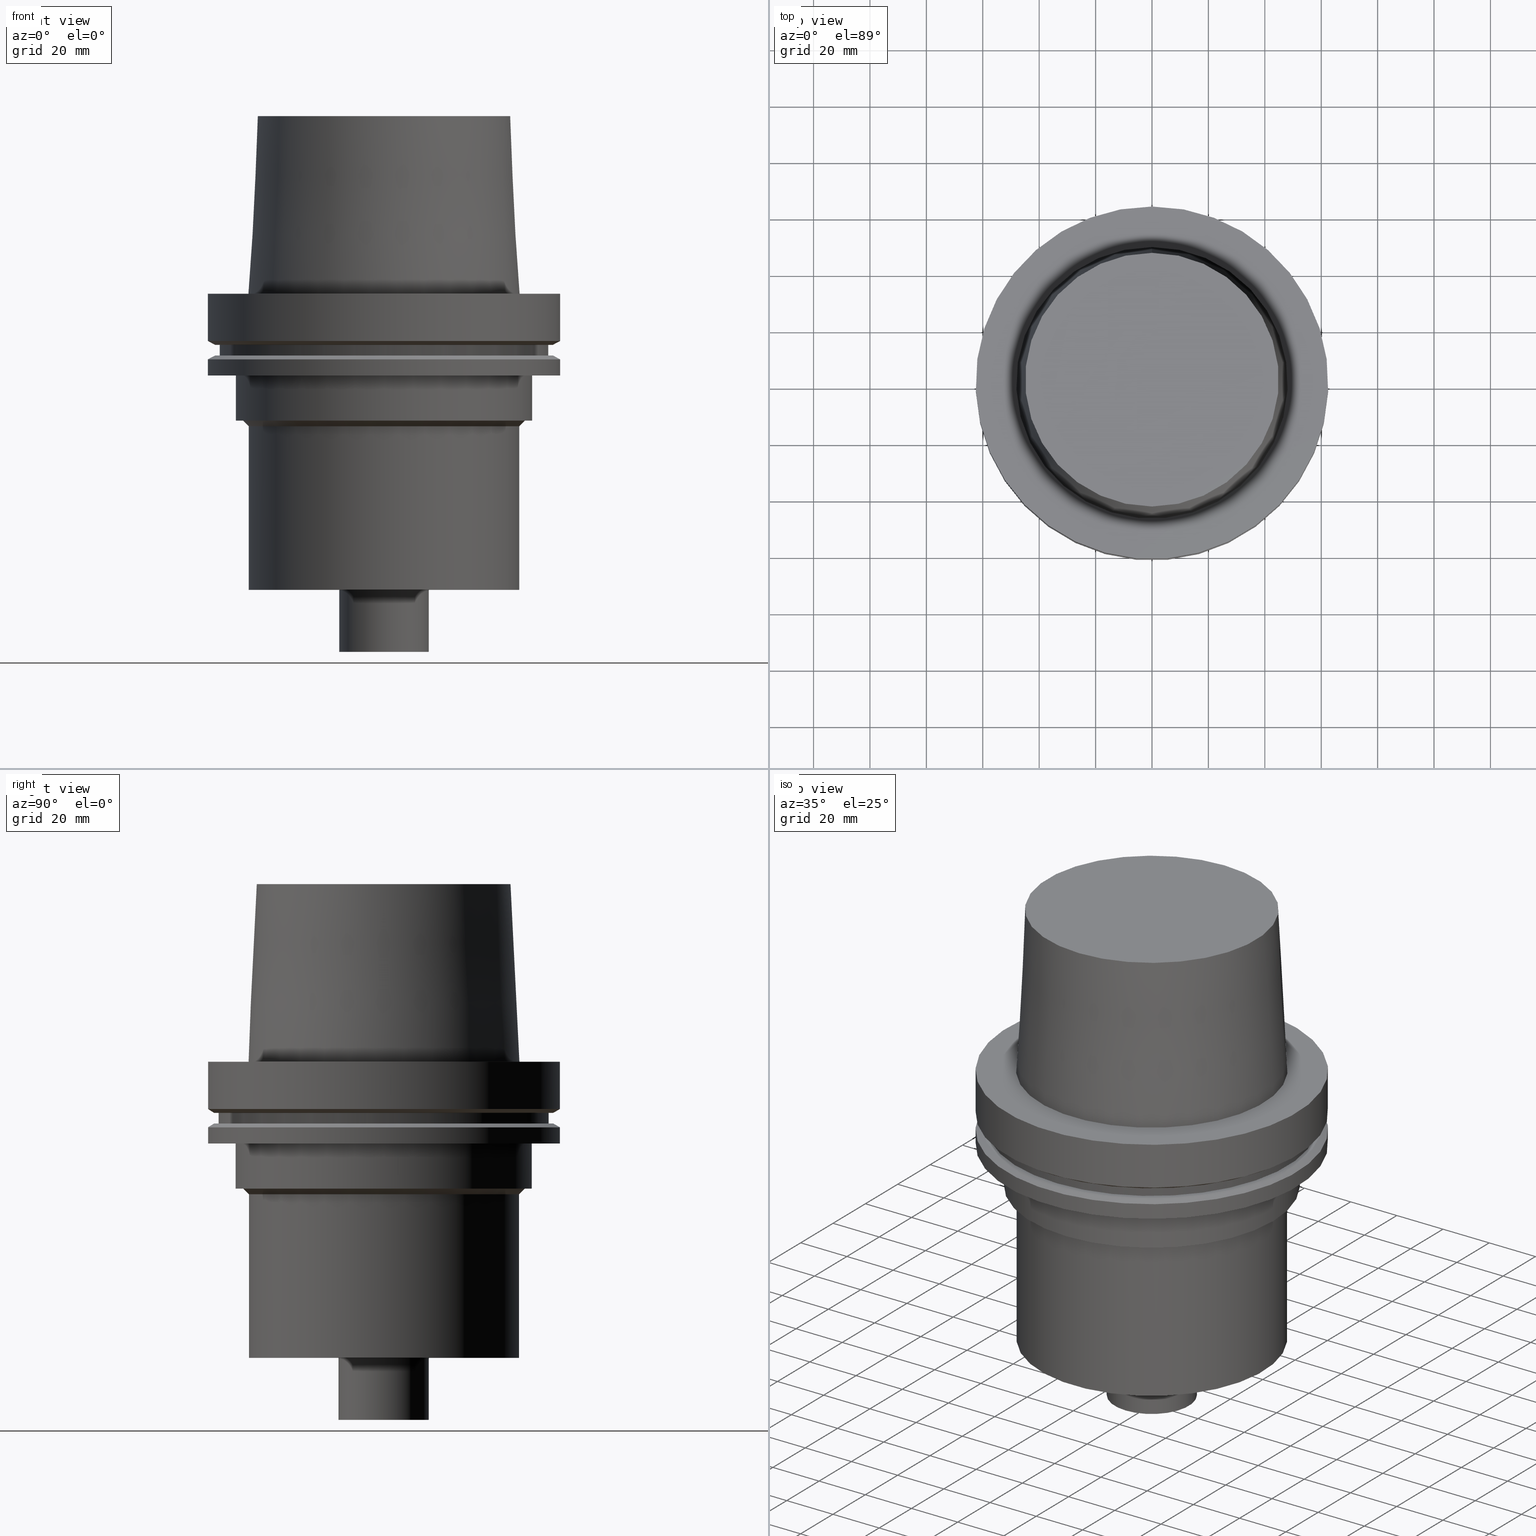
[diagram: canonical four-view strip — front | top / right | iso, engineering-drawing reading convention]
A machine part, canonical four-view strip (front | top / right | iso — engineering-drawing reading convention). The complete STEP part file that produces these views, byte-faithful:
ISO-10303-21;
HEADER;
FILE_DESCRIPTION((''),'1');
FILE_NAME('V:/02_3D_Field-HP\X2\FF71FF6FFF8CFF9F5916\X0\2013/02_Step_Field-HP\X2\FF71FF6FFF8CFF9F5916\X0\2013/BIGKAISER_BKUS\X2\5411\X0\_201802/HSK/HSK-A125-FMH32-96-105.stp','2018-02-05T01:11:56',(''),(''),'Spatial Interop R21 SP3','Kubotek KeyCreator 2011 V10.0.2 (22737)',' ');
FILE_SCHEMA(('automotive_design'));
ENDSEC;
DATA;
#1=MECHANICAL_DESIGN_GEOMETRIC_PRESENTATION_REPRESENTATION(' ',(#10,#11,#12,#13,#14,#15,#16,#17,#18,#19,#20,#21,#22,#23,#24,#25,#26,#27,#28,#29,#30,#31,#32,#33,#34,#35,#36,#37,#38,#39,#40,#41,#42,#43,#44,#45),#6);
#2=PRODUCT_DEFINITION_CONTEXT('',#46,'design');
#3=APPLICATION_PROTOCOL_DEFINITION('INTERNATIONAL STANDARD','automotive_design',1994,#46);
#4=PRODUCT_CATEGORY_RELATIONSHIP('NONE','NONE',#47,#48);
#5=SHAPE_DEFINITION_REPRESENTATION(#49,#50);
#6= (GEOMETRIC_REPRESENTATION_CONTEXT(3)GLOBAL_UNCERTAINTY_ASSIGNED_CONTEXT((#53))GLOBAL_UNIT_ASSIGNED_CONTEXT((#55,#56,#57))REPRESENTATION_CONTEXT('NONE','WORKSPACE'));
#10=STYLED_ITEM('',(#59,#60),#61);
#11=STYLED_ITEM('',(#62,#63),#64);
#12=STYLED_ITEM('',(#65,#66),#67);
#13=STYLED_ITEM('',(#68,#69),#70);
#14=STYLED_ITEM('',(#71,#72),#73);
#15=STYLED_ITEM('',(#74,#75),#76);
#16=STYLED_ITEM('',(#77,#78),#79);
#17=STYLED_ITEM('',(#80),#81);
#18=STYLED_ITEM('',(#82),#83);
#19=STYLED_ITEM('',(#84,#85),#86);
#20=STYLED_ITEM('',(#87,#88),#89);
#21=STYLED_ITEM('',(#90,#91),#92);
#22=STYLED_ITEM('',(#93,#94),#95);
#23=STYLED_ITEM('',(#96),#97);
#24=STYLED_ITEM('',(#98),#99);
#25=STYLED_ITEM('',(#100,#101),#102);
#26=STYLED_ITEM('',(#103),#104);
#27=STYLED_ITEM('',(#105),#106);
#28=STYLED_ITEM('',(#107),#108);
#29=STYLED_ITEM('',(#109),#110);
#30=STYLED_ITEM('',(#111,#112),#113);
#31=STYLED_ITEM('',(#114,#115),#116);
#32=STYLED_ITEM('',(#117),#118);
#33=STYLED_ITEM('',(#119),#120);
#34=STYLED_ITEM('',(#121),#122);
#35=STYLED_ITEM('',(#123),#124);
#36=STYLED_ITEM('',(#125,#126),#127);
#37=STYLED_ITEM('',(#128),#129);
#38=STYLED_ITEM('',(#130),#131);
#39=STYLED_ITEM('',(#132),#133);
#40=STYLED_ITEM('',(#134,#135),#136);
#41=STYLED_ITEM('',(#137),#138);
#42=STYLED_ITEM('',(#139,#140),#141);
#43=STYLED_ITEM('',(#142,#143),#144);
#44=STYLED_ITEM('',(#145,#146),#147);
#45=STYLED_ITEM('',(#148),#149);
#46=APPLICATION_CONTEXT(' ');
#47=PRODUCT_CATEGORY('part','NONE');
#48=PRODUCT_RELATED_PRODUCT_CATEGORY('detail',' ',(#150));
#49=PRODUCT_DEFINITION_SHAPE('NONE','NONE',#151);
#50=ADVANCED_BREP_SHAPE_REPRESENTATION('Unnamed[1]',(#141,#152),#6);
#53=UNCERTAINTY_MEASURE_WITH_UNIT(LENGTH_MEASURE(1.0E-006),#55,'','');
#55= (CONVERSION_BASED_UNIT('MILLIMETRE',#155)LENGTH_UNIT()NAMED_UNIT(#158));
#56= (NAMED_UNIT(#160)PLANE_ANGLE_UNIT()SI_UNIT($,.RADIAN.));
#57= (NAMED_UNIT(#160)SOLID_ANGLE_UNIT()SI_UNIT($,.STERADIAN.));
#59=PRESENTATION_STYLE_ASSIGNMENT((#166));
#60=PRESENTATION_STYLE_ASSIGNMENT((#167));
#61=ADVANCED_FACE('Unnamed[1]',(#168,#169),#170,.T.);
#62=PRESENTATION_STYLE_ASSIGNMENT((#171));
#63=PRESENTATION_STYLE_ASSIGNMENT((#172));
#64=ADVANCED_FACE('Unnamed[1]',(#173,#174),#175,.T.);
#65=PRESENTATION_STYLE_ASSIGNMENT((#176));
#66=PRESENTATION_STYLE_ASSIGNMENT((#177));
#67=ADVANCED_FACE('Unnamed[1]',(#178,#179),#180,.T.);
#68=PRESENTATION_STYLE_ASSIGNMENT((#181));
#69=PRESENTATION_STYLE_ASSIGNMENT((#182));
#70=ADVANCED_FACE('Unnamed[1]',(#183,#184),#185,.T.);
#71=PRESENTATION_STYLE_ASSIGNMENT((#186));
#72=PRESENTATION_STYLE_ASSIGNMENT((#187));
#73=ADVANCED_FACE('Unnamed[1]',(#188,#189),#190,.T.);
#74=PRESENTATION_STYLE_ASSIGNMENT((#191));
#75=PRESENTATION_STYLE_ASSIGNMENT((#192));
#76=ADVANCED_FACE('Unnamed[1]',(#193),#194,.T.);
#77=PRESENTATION_STYLE_ASSIGNMENT((#195));
#78=PRESENTATION_STYLE_ASSIGNMENT((#196));
#79=ADVANCED_FACE('Unnamed[1]',(#197,#198),#199,.T.);
#80=PRESENTATION_STYLE_ASSIGNMENT((#200));
#81=EDGE_CURVE('Unnamed[1]',#201,#201,#202,.T.);
#82=PRESENTATION_STYLE_ASSIGNMENT((#203));
#83=EDGE_CURVE('Unnamed[1]',#204,#204,#205,.T.);
#84=PRESENTATION_STYLE_ASSIGNMENT((#206));
#85=PRESENTATION_STYLE_ASSIGNMENT((#207));
#86=ADVANCED_FACE('Unnamed[1]',(#208,#209),#210,.T.);
#87=PRESENTATION_STYLE_ASSIGNMENT((#211));
#88=PRESENTATION_STYLE_ASSIGNMENT((#212));
#89=ADVANCED_FACE('Unnamed[1]',(#213,#214),#215,.T.);
#90=PRESENTATION_STYLE_ASSIGNMENT((#216));
#91=PRESENTATION_STYLE_ASSIGNMENT((#217));
#92=ADVANCED_FACE('Unnamed[1]',(#218,#219),#220,.T.);
#93=PRESENTATION_STYLE_ASSIGNMENT((#221));
#94=PRESENTATION_STYLE_ASSIGNMENT((#222));
#95=ADVANCED_FACE('Unnamed[1]',(#223,#224),#225,.T.);
#96=PRESENTATION_STYLE_ASSIGNMENT((#226));
#97=EDGE_CURVE('Unnamed[1]',#227,#227,#228,.T.);
#98=PRESENTATION_STYLE_ASSIGNMENT((#229));
#99=EDGE_CURVE('Unnamed[1]',#230,#230,#231,.T.);
#100=PRESENTATION_STYLE_ASSIGNMENT((#232));
#101=PRESENTATION_STYLE_ASSIGNMENT((#233));
#102=ADVANCED_FACE('Unnamed[1]',(#234),#235,.T.);
#103=PRESENTATION_STYLE_ASSIGNMENT((#236));
#104=EDGE_CURVE('Unnamed[1]',#237,#237,#238,.T.);
#105=PRESENTATION_STYLE_ASSIGNMENT((#239));
#106=EDGE_CURVE('Unnamed[1]',#240,#240,#241,.T.);
#107=PRESENTATION_STYLE_ASSIGNMENT((#242));
#108=EDGE_CURVE('Unnamed[1]',#243,#243,#244,.T.);
#109=PRESENTATION_STYLE_ASSIGNMENT((#245));
#110=EDGE_CURVE('Unnamed[1]',#246,#246,#247,.T.);
#111=PRESENTATION_STYLE_ASSIGNMENT((#248));
#112=PRESENTATION_STYLE_ASSIGNMENT((#249));
#113=ADVANCED_FACE('Unnamed[1]',(#250,#251),#252,.T.);
#114=PRESENTATION_STYLE_ASSIGNMENT((#253));
#115=PRESENTATION_STYLE_ASSIGNMENT((#254));
#116=ADVANCED_FACE('Unnamed[1]',(#255,#256),#257,.T.);
#117=PRESENTATION_STYLE_ASSIGNMENT((#258));
#118=EDGE_CURVE('Unnamed[1]',#259,#259,#260,.T.);
#119=PRESENTATION_STYLE_ASSIGNMENT((#261));
#120=EDGE_CURVE('Unnamed[1]',#262,#262,#263,.T.);
#121=PRESENTATION_STYLE_ASSIGNMENT((#264));
#122=EDGE_CURVE('Unnamed[1]',#265,#265,#266,.T.);
#123=PRESENTATION_STYLE_ASSIGNMENT((#267));
#124=EDGE_CURVE('Unnamed[1]',#268,#268,#269,.T.);
#125=PRESENTATION_STYLE_ASSIGNMENT((#270));
#126=PRESENTATION_STYLE_ASSIGNMENT((#271));
#127=ADVANCED_FACE('Unnamed[1]',(#272,#273),#274,.T.);
#128=PRESENTATION_STYLE_ASSIGNMENT((#275));
#129=EDGE_CURVE('Unnamed[1]',#276,#276,#277,.T.);
#130=PRESENTATION_STYLE_ASSIGNMENT((#278));
#131=EDGE_CURVE('Unnamed[1]',#279,#279,#280,.T.);
#132=PRESENTATION_STYLE_ASSIGNMENT((#281));
#133=EDGE_CURVE('Unnamed[1]',#282,#282,#283,.T.);
#134=PRESENTATION_STYLE_ASSIGNMENT((#284));
#135=PRESENTATION_STYLE_ASSIGNMENT((#285));
#136=ADVANCED_FACE('Unnamed[1]',(#286,#287),#288,.T.);
#137=PRESENTATION_STYLE_ASSIGNMENT((#289));
#138=EDGE_CURVE('Unnamed[1]',#290,#290,#291,.T.);
#139=PRESENTATION_STYLE_ASSIGNMENT((#292));
#140=PRESENTATION_STYLE_ASSIGNMENT((#293));
#141=MANIFOLD_SOLID_BREP('Unnamed[1]',#294);
#142=PRESENTATION_STYLE_ASSIGNMENT((#295));
#143=PRESENTATION_STYLE_ASSIGNMENT((#296));
#144=ADVANCED_FACE('Unnamed[1]',(#297,#298),#299,.T.);
#145=PRESENTATION_STYLE_ASSIGNMENT((#300));
#146=PRESENTATION_STYLE_ASSIGNMENT((#301));
#147=ADVANCED_FACE('Unnamed[1]',(#302,#303),#304,.T.);
#148=PRESENTATION_STYLE_ASSIGNMENT((#305));
#149=EDGE_CURVE('Unnamed[1]',#306,#306,#307,.T.);
#150=PRODUCT('Unnamed[1]','Unnamed[1]','PART-Unnamed[1]-DESC',(#308));
#151=PRODUCT_DEFINITION('NONE','NONE',#309,#2);
#152=AXIS2_PLACEMENT_3D('',#310,#311,#312);
#155=LENGTH_MEASURE_WITH_UNIT(LENGTH_MEASURE(1.0),#313);
#158=DIMENSIONAL_EXPONENTS(1.0,0.0,0.0,0.0,0.0,0.0,0.0);
#160=DIMENSIONAL_EXPONENTS(0.0,0.0,0.0,0.0,0.0,0.0,0.0);
#166=SURFACE_STYLE_USAGE(.BOTH.,#314);
#167=CURVE_STYLE('',#315,POSITIVE_LENGTH_MEASURE(1000.0),#316);
#168=FACE_OUTER_BOUND('',#317,.T.);
#169=FACE_BOUND('',#318,.T.);
#170=PLANE('',#319);
#171=SURFACE_STYLE_USAGE(.BOTH.,#320);
#172=CURVE_STYLE('',#321,POSITIVE_LENGTH_MEASURE(1000.0),#322);
#173=FACE_BOUND('',#323,.T.);
#174=FACE_BOUND('',#324,.T.);
#175=CONICAL_SURFACE('',#325,48.9999999999999,0.785398163397411);
#176=SURFACE_STYLE_USAGE(.BOTH.,#326);
#177=CURVE_STYLE('',#327,POSITIVE_LENGTH_MEASURE(1000.0),#328);
#178=FACE_BOUND('',#329,.T.);
#179=FACE_OUTER_BOUND('',#330,.T.);
#180=PLANE('',#331);
#181=SURFACE_STYLE_USAGE(.BOTH.,#332);
#182=CURVE_STYLE('',#333,POSITIVE_LENGTH_MEASURE(1000.0),#334);
#183=FACE_BOUND('',#335,.T.);
#184=FACE_BOUND('',#336,.T.);
#185=CYLINDRICAL_SURFACE('',#337,15.9999999999998);
#186=SURFACE_STYLE_USAGE(.BOTH.,#338);
#187=CURVE_STYLE('',#339,POSITIVE_LENGTH_MEASURE(1000.0),#340);
#188=FACE_BOUND('',#341,.T.);
#189=FACE_OUTER_BOUND('',#342,.T.);
#190=PLANE('',#343);
#191=SURFACE_STYLE_USAGE(.BOTH.,#344);
#192=CURVE_STYLE('',#345,POSITIVE_LENGTH_MEASURE(1000.0),#346);
#193=FACE_OUTER_BOUND('',#347,.T.);
#194=PLANE('',#348);
#195=SURFACE_STYLE_USAGE(.BOTH.,#349);
#196=CURVE_STYLE('',#350,POSITIVE_LENGTH_MEASURE(1000.0),#351);
#197=FACE_BOUND('',#352,.T.);
#198=FACE_BOUND('',#353,.T.);
#199=CYLINDRICAL_SURFACE('',#354,62.5);
#200=CURVE_STYLE('',#355,POSITIVE_LENGTH_MEASURE(1000.0),#356);
#201=VERTEX_POINT('',#357);
#202=CIRCLE('',#358,58.4999999999998);
#203=CURVE_STYLE('',#359,POSITIVE_LENGTH_MEASURE(1000.0),#360);
#204=VERTEX_POINT('',#361);
#205=CIRCLE('',#362,60.122595264194);
#206=SURFACE_STYLE_USAGE(.BOTH.,#363);
#207=CURVE_STYLE('',#364,POSITIVE_LENGTH_MEASURE(1000.0),#365);
#208=FACE_BOUND('',#366,.T.);
#209=FACE_BOUND('',#367,.T.);
#210=CYLINDRICAL_SURFACE('',#368,52.4999999999999);
#211=SURFACE_STYLE_USAGE(.BOTH.,#369);
#212=CURVE_STYLE('',#370,POSITIVE_LENGTH_MEASURE(1000.0),#371);
#213=FACE_BOUND('',#372,.T.);
#214=FACE_BOUND('',#373,.T.);
#215=CONICAL_SURFACE('',#374,61.311297632097,1.04719755119646);
#216=SURFACE_STYLE_USAGE(.BOTH.,#375);
#217=CURVE_STYLE('',#376,POSITIVE_LENGTH_MEASURE(1000.0),#377);
#218=FACE_BOUND('',#378,.T.);
#219=FACE_BOUND('',#379,.T.);
#220=CONICAL_SURFACE('',#380,61.3112976320956,1.04719755119668);
#221=SURFACE_STYLE_USAGE(.BOTH.,#381);
#222=CURVE_STYLE('',#382,POSITIVE_LENGTH_MEASURE(1000.0),#383);
#223=FACE_BOUND('',#384,.T.);
#224=FACE_OUTER_BOUND('',#385,.T.);
#225=PLANE('',#386);
#226=CURVE_STYLE('',#387,POSITIVE_LENGTH_MEASURE(1000.0),#388);
#227=VERTEX_POINT('',#389);
#228=CIRCLE('',#390,48.0);
#229=CURVE_STYLE('',#391,POSITIVE_LENGTH_MEASURE(1000.0),#392);
#230=VERTEX_POINT('',#393);
#231=CIRCLE('',#394,62.5);
#232=SURFACE_STYLE_USAGE(.BOTH.,#395);
#233=CURVE_STYLE('',#396,POSITIVE_LENGTH_MEASURE(1000.0),#397);
#234=FACE_OUTER_BOUND('',#398,.T.);
#235=PLANE('',#399);
#236=CURVE_STYLE('',#400,POSITIVE_LENGTH_MEASURE(1000.0),#401);
#237=VERTEX_POINT('',#402);
#238=CIRCLE('',#403,52.4999999999999);
#239=CURVE_STYLE('',#404,POSITIVE_LENGTH_MEASURE(1000.0),#405);
#240=VERTEX_POINT('',#406);
#241=CIRCLE('',#407,44.9779398797591);
#242=CURVE_STYLE('',#408,POSITIVE_LENGTH_MEASURE(1000.0),#409);
#243=VERTEX_POINT('',#410);
#244=CIRCLE('',#411,62.5000000000002);
#245=CURVE_STYLE('',#412,POSITIVE_LENGTH_MEASURE(1000.0),#413);
#246=VERTEX_POINT('',#414);
#247=CIRCLE('',#415,58.5);
#248=SURFACE_STYLE_USAGE(.BOTH.,#416);
#249=CURVE_STYLE('',#417,POSITIVE_LENGTH_MEASURE(1000.0),#418);
#250=FACE_BOUND('',#419,.T.);
#251=FACE_BOUND('',#420,.T.);
#252=CONICAL_SURFACE('',#421,46.5560961923844,0.0500583457465964);
#253=SURFACE_STYLE_USAGE(.BOTH.,#422);
#254=CURVE_STYLE('',#423,POSITIVE_LENGTH_MEASURE(1000.0),#424);
#255=FACE_BOUND('',#425,.T.);
#256=FACE_OUTER_BOUND('',#426,.T.);
#257=PLANE('',#427);
#258=CURVE_STYLE('',#428,POSITIVE_LENGTH_MEASURE(1000.0),#429);
#259=VERTEX_POINT('',#430);
#260=CIRCLE('',#431,60.1225952641912);
#261=CURVE_STYLE('',#432,POSITIVE_LENGTH_MEASURE(1000.0),#433);
#262=VERTEX_POINT('',#434);
#263=CIRCLE('',#435,52.5);
#264=CURVE_STYLE('',#436,POSITIVE_LENGTH_MEASURE(1000.0),#437);
#265=VERTEX_POINT('',#438);
#266=CIRCLE('',#439,62.5);
#267=CURVE_STYLE('',#440,POSITIVE_LENGTH_MEASURE(1000.0),#441);
#268=VERTEX_POINT('',#442);
#269=CIRCLE('',#443,15.9999999999999);
#270=SURFACE_STYLE_USAGE(.BOTH.,#444);
#271=CURVE_STYLE('',#445,POSITIVE_LENGTH_MEASURE(1000.0),#446);
#272=FACE_OUTER_BOUND('',#447,.T.);
#273=FACE_BOUND('',#448,.T.);
#274=PLANE('',#449);
#275=CURVE_STYLE('',#450,POSITIVE_LENGTH_MEASURE(1000.0),#451);
#276=VERTEX_POINT('',#452);
#277=CIRCLE('',#453,48.1342525050097);
#278=CURVE_STYLE('',#454,POSITIVE_LENGTH_MEASURE(1000.0),#455);
#279=VERTEX_POINT('',#456);
#280=CIRCLE('',#457,49.9999999999999);
#281=CURVE_STYLE('',#458,POSITIVE_LENGTH_MEASURE(1000.0),#459);
#282=VERTEX_POINT('',#460);
#283=CIRCLE('',#461,15.9999999999996);
#284=SURFACE_STYLE_USAGE(.BOTH.,#462);
#285=CURVE_STYLE('',#463,POSITIVE_LENGTH_MEASURE(1000.0),#464);
#286=FACE_BOUND('',#465,.T.);
#287=FACE_BOUND('',#466,.T.);
#288=CYLINDRICAL_SURFACE('',#467,58.4999999999999);
#289=CURVE_STYLE('',#468,POSITIVE_LENGTH_MEASURE(1000.0),#469);
#290=VERTEX_POINT('',#470);
#291=CIRCLE('',#471,48.0);
#292=SURFACE_STYLE_USAGE(.BOTH.,#472);
#293=CURVE_STYLE('',#473,POSITIVE_LENGTH_MEASURE(1000.0),#474);
#294=CLOSED_SHELL('',(#76,#113,#61,#144,#92,#95,#136,#127,#89,#79,#73,#86,#116,#64,#147,#67,#70,#102));
#295=SURFACE_STYLE_USAGE(.BOTH.,#475);
#296=CURVE_STYLE('',#476,POSITIVE_LENGTH_MEASURE(1000.0),#477);
#297=FACE_BOUND('',#478,.T.);
#298=FACE_BOUND('',#479,.T.);
#299=CYLINDRICAL_SURFACE('',#480,62.5000000000001);
#300=SURFACE_STYLE_USAGE(.BOTH.,#481);
#301=CURVE_STYLE('',#482,POSITIVE_LENGTH_MEASURE(1000.0),#483);
#302=FACE_BOUND('',#484,.T.);
#303=FACE_BOUND('',#485,.T.);
#304=CYLINDRICAL_SURFACE('',#486,48.0);
#305=CURVE_STYLE('',#487,POSITIVE_LENGTH_MEASURE(1000.0),#488);
#306=VERTEX_POINT('',#489);
#307=CIRCLE('',#490,62.5);
#308=PRODUCT_CONTEXT('',#46,'mechanical');
#309=PRODUCT_DEFINITION_FORMATION_WITH_SPECIFIED_SOURCE(' ','NONE',#150,.NOT_KNOWN.);
#310=CARTESIAN_POINT('',(0.0,0.0,0.0));
#311=DIRECTION('',(0.0,0.0,1.0));
#312=DIRECTION('',(1.0,0.0,0.0));
#313= (NAMED_UNIT(#158)LENGTH_UNIT()SI_UNIT(.MILLI.,.METRE.));
#314=SURFACE_SIDE_STYLE('',(#492));
#315=DRAUGHTING_PRE_DEFINED_CURVE_FONT('continuous');
#316=COLOUR_RGB('',0.0,1.0,0.0);
#317=EDGE_LOOP('',(#493));
#318=EDGE_LOOP('',(#494));
#319=AXIS2_PLACEMENT_3D('',#495,#496,#497);
#320=SURFACE_SIDE_STYLE('',(#498));
#321=DRAUGHTING_PRE_DEFINED_CURVE_FONT('continuous');
#322=COLOUR_RGB('',0.0,1.0,0.0);
#323=EDGE_LOOP('',(#499));
#324=EDGE_LOOP('',(#500));
#325=AXIS2_PLACEMENT_3D('',#501,#502,#503);
#326=SURFACE_SIDE_STYLE('',(#504));
#327=DRAUGHTING_PRE_DEFINED_CURVE_FONT('continuous');
#328=COLOUR_RGB('',0.0,1.0,0.0);
#329=EDGE_LOOP('',(#505));
#330=EDGE_LOOP('',(#506));
#331=AXIS2_PLACEMENT_3D('',#507,#508,#509);
#332=SURFACE_SIDE_STYLE('',(#510));
#333=DRAUGHTING_PRE_DEFINED_CURVE_FONT('continuous');
#334=COLOUR_RGB('',0.0,1.0,0.0);
#335=EDGE_LOOP('',(#511));
#336=EDGE_LOOP('',(#512));
#337=AXIS2_PLACEMENT_3D('',#513,#514,#515);
#338=SURFACE_SIDE_STYLE('',(#516));
#339=DRAUGHTING_PRE_DEFINED_CURVE_FONT('continuous');
#340=COLOUR_RGB('',0.0,1.0,0.0);
#341=EDGE_LOOP('',(#517));
#342=EDGE_LOOP('',(#518));
#343=AXIS2_PLACEMENT_3D('',#519,#520,#521);
#344=SURFACE_SIDE_STYLE('',(#522));
#345=DRAUGHTING_PRE_DEFINED_CURVE_FONT('continuous');
#346=COLOUR_RGB('',0.0,1.0,0.0);
#347=EDGE_LOOP('',(#523));
#348=AXIS2_PLACEMENT_3D('',#524,#525,#526);
#349=SURFACE_SIDE_STYLE('',(#527));
#350=DRAUGHTING_PRE_DEFINED_CURVE_FONT('continuous');
#351=COLOUR_RGB('',0.0,1.0,0.0);
#352=EDGE_LOOP('',(#528));
#353=EDGE_LOOP('',(#529));
#354=AXIS2_PLACEMENT_3D('',#530,#531,#532);
#355=DRAUGHTING_PRE_DEFINED_CURVE_FONT('continuous');
#356=COLOUR_RGB('',0.0,1.0,0.0);
#357=CARTESIAN_POINT('',(1.33945743656732E-015,58.4999999999998,-21.8749999999984));
#358=AXIS2_PLACEMENT_3D('',#533,#534,#535);
#359=DRAUGHTING_PRE_DEFINED_CURVE_FONT('continuous');
#360=COLOUR_RGB('',0.0,1.0,0.0);
#361=CARTESIAN_POINT('',(1.33945743656747E-015,60.122595264194,-21.8750000000009));
#362=AXIS2_PLACEMENT_3D('',#536,#537,#538);
#363=SURFACE_SIDE_STYLE('',(#539));
#364=DRAUGHTING_PRE_DEFINED_CURVE_FONT('continuous');
#365=COLOUR_RGB('',0.0,1.0,0.0);
#366=EDGE_LOOP('',(#540));
#367=EDGE_LOOP('',(#541));
#368=AXIS2_PLACEMENT_3D('',#542,#543,#544);
#369=SURFACE_SIDE_STYLE('',(#545));
#370=DRAUGHTING_PRE_DEFINED_CURVE_FONT('continuous');
#371=COLOUR_RGB('',0.0,1.0,0.0);
#372=EDGE_LOOP('',(#546));
#373=EDGE_LOOP('',(#547));
#374=AXIS2_PLACEMENT_3D('',#548,#549,#550);
#375=SURFACE_SIDE_STYLE('',(#551));
#376=DRAUGHTING_PRE_DEFINED_CURVE_FONT('continuous');
#377=COLOUR_RGB('',0.0,1.0,0.0);
#378=EDGE_LOOP('',(#552));
#379=EDGE_LOOP('',(#553));
#380=AXIS2_PLACEMENT_3D('',#554,#555,#556);
#381=SURFACE_SIDE_STYLE('',(#557));
#382=DRAUGHTING_PRE_DEFINED_CURVE_FONT('continuous');
#383=COLOUR_RGB('',0.0,1.0,0.0);
#384=EDGE_LOOP('',(#558));
#385=EDGE_LOOP('',(#559));
#386=AXIS2_PLACEMENT_3D('',#560,#561,#562);
#387=DRAUGHTING_PRE_DEFINED_CURVE_FONT('continuous');
#388=COLOUR_RGB('',0.0,1.0,0.0);
#389=CARTESIAN_POINT('',(6.4293956955236E-015,48.0,-105.0));
#390=AXIS2_PLACEMENT_3D('',#563,#564,#565);
#391=DRAUGHTING_PRE_DEFINED_CURVE_FONT('continuous');
#392=COLOUR_RGB('',0.0,1.0,0.0);
#393=CARTESIAN_POINT('',(1.77573785876367E-015,62.5,-29.0000000000001));
#394=AXIS2_PLACEMENT_3D('',#566,#567,#568);
#395=SURFACE_SIDE_STYLE('',(#569));
#396=DRAUGHTING_PRE_DEFINED_CURVE_FONT('continuous');
#397=COLOUR_RGB('',0.0,1.0,0.0);
#398=EDGE_LOOP('',(#570));
#399=AXIS2_PLACEMENT_3D('',#571,#572,#573);
#400=DRAUGHTING_PRE_DEFINED_CURVE_FONT('continuous');
#401=COLOUR_RGB('',0.0,1.0,0.0);
#402=CARTESIAN_POINT('',(2.75545529808155E-015,52.4999999999999,-45.0000000000001));
#403=AXIS2_PLACEMENT_3D('',#574,#575,#576);
#404=DRAUGHTING_PRE_DEFINED_CURVE_FONT('continuous');
#405=COLOUR_RGB('',0.0,1.0,0.0);
#406=CARTESIAN_POINT('',(-3.85763741731416E-015,44.9779398797591,62.9999999999999));
#407=AXIS2_PLACEMENT_3D('',#577,#578,#579);
#408=DRAUGHTING_PRE_DEFINED_CURVE_FONT('continuous');
#409=COLOUR_RGB('',0.0,1.0,0.0);
#410=CARTESIAN_POINT('',(-5.58935713239973E-030,62.5000000000002,8.63540424946709E-014));
#411=AXIS2_PLACEMENT_3D('',#580,#581,#582);
#412=DRAUGHTING_PRE_DEFINED_CURVE_FONT('continuous');
#413=COLOUR_RGB('',0.0,1.0,0.0);
#414=CARTESIAN_POINT('',(1.10983616172739E-015,58.5,-18.1250000000017));
#415=AXIS2_PLACEMENT_3D('',#583,#584,#585);
#416=SURFACE_SIDE_STYLE('',(#586));
#417=DRAUGHTING_PRE_DEFINED_CURVE_FONT('continuous');
#418=COLOUR_RGB('',0.0,1.0,0.0);
#419=EDGE_LOOP('',(#587));
#420=EDGE_LOOP('',(#588));
#421=AXIS2_PLACEMENT_3D('',#589,#590,#591);
#422=SURFACE_SIDE_STYLE('',(#592));
#423=DRAUGHTING_PRE_DEFINED_CURVE_FONT('continuous');
#424=COLOUR_RGB('',0.0,1.0,0.0);
#425=EDGE_LOOP('',(#593));
#426=EDGE_LOOP('',(#594));
#427=AXIS2_PLACEMENT_3D('',#595,#596,#597);
#428=DRAUGHTING_PRE_DEFINED_CURVE_FONT('continuous');
#429=COLOUR_RGB('',0.0,1.0,0.0);
#430=CARTESIAN_POINT('',(1.10983616172729E-015,60.1225952641912,-18.1250000000001));
#431=AXIS2_PLACEMENT_3D('',#598,#599,#600);
#432=DRAUGHTING_PRE_DEFINED_CURVE_FONT('continuous');
#433=COLOUR_RGB('',0.0,1.0,0.0);
#434=CARTESIAN_POINT('',(1.77573785876367E-015,52.5,-29.0000000000001));
#435=AXIS2_PLACEMENT_3D('',#601,#602,#603);
#436=DRAUGHTING_PRE_DEFINED_CURVE_FONT('continuous');
#437=COLOUR_RGB('',0.0,1.0,0.0);
#438=CARTESIAN_POINT('',(1.42350465640827E-015,62.5,-23.2475952641916));
#439=AXIS2_PLACEMENT_3D('',#604,#605,#606);
#440=DRAUGHTING_PRE_DEFINED_CURVE_FONT('continuous');
#441=COLOUR_RGB('',0.0,1.0,0.0);
#442=CARTESIAN_POINT('',(6.4293956955236E-015,15.9999999999999,-105.0));
#443=AXIS2_PLACEMENT_3D('',#607,#608,#609);
#444=SURFACE_SIDE_STYLE('',(#610));
#445=DRAUGHTING_PRE_DEFINED_CURVE_FONT('continuous');
#446=COLOUR_RGB('',0.0,1.0,0.0);
#447=EDGE_LOOP('',(#611));
#448=EDGE_LOOP('',(#612));
#449=AXIS2_PLACEMENT_3D('',#613,#614,#615);
#450=DRAUGHTING_PRE_DEFINED_CURVE_FONT('continuous');
#451=COLOUR_RGB('',0.0,1.0,0.0);
#452=CARTESIAN_POINT('',(3.88342032297484E-029,48.1342525050097,-6.38005254174039E-013));
#453=AXIS2_PLACEMENT_3D('',#616,#617,#618);
#454=DRAUGHTING_PRE_DEFINED_CURVE_FONT('continuous');
#455=COLOUR_RGB('',0.0,1.0,0.0);
#456=CARTESIAN_POINT('',(2.75545529808155E-015,49.9999999999999,-45.0000000000001));
#457=AXIS2_PLACEMENT_3D('',#619,#620,#621);
#458=DRAUGHTING_PRE_DEFINED_CURVE_FONT('continuous');
#459=COLOUR_RGB('',0.0,1.0,0.0);
#460=CARTESIAN_POINT('',(7.77650717458566E-015,15.9999999999996,-127.0));
#461=AXIS2_PLACEMENT_3D('',#622,#623,#624);
#462=SURFACE_SIDE_STYLE('',(#625));
#463=DRAUGHTING_PRE_DEFINED_CURVE_FONT('continuous');
#464=COLOUR_RGB('',0.0,1.0,0.0);
#465=EDGE_LOOP('',(#626));
#466=EDGE_LOOP('',(#627));
#467=AXIS2_PLACEMENT_3D('',#628,#629,#630);
#468=DRAUGHTING_PRE_DEFINED_CURVE_FONT('continuous');
#469=COLOUR_RGB('',0.0,1.0,0.0);
#470=CARTESIAN_POINT('',(2.87791997799629E-015,48.0,-47.0000000000001));
#471=AXIS2_PLACEMENT_3D('',#631,#632,#633);
#472=SURFACE_SIDE_STYLE('',(#634));
#473=DRAUGHTING_PRE_DEFINED_CURVE_FONT('continuous');
#474=COLOUR_RGB('',0.0,1.0,0.0);
#475=SURFACE_SIDE_STYLE('',(#635));
#476=DRAUGHTING_PRE_DEFINED_CURVE_FONT('continuous');
#477=COLOUR_RGB('',0.0,1.0,0.0);
#478=EDGE_LOOP('',(#636));
#479=EDGE_LOOP('',(#637));
#480=AXIS2_PLACEMENT_3D('',#638,#639,#640);
#481=SURFACE_SIDE_STYLE('',(#641));
#482=DRAUGHTING_PRE_DEFINED_CURVE_FONT('continuous');
#483=COLOUR_RGB('',0.0,1.0,0.0);
#484=EDGE_LOOP('',(#642));
#485=EDGE_LOOP('',(#643));
#486=AXIS2_PLACEMENT_3D('',#644,#645,#646);
#487=DRAUGHTING_PRE_DEFINED_CURVE_FONT('continuous');
#488=COLOUR_RGB('',0.0,1.0,0.0);
#489=CARTESIAN_POINT('',(1.02578894188644E-015,62.5,-16.7524047358084));
#490=AXIS2_PLACEMENT_3D('',#647,#648,#649);
#492=SURFACE_STYLE_FILL_AREA(#650);
#493=ORIENTED_EDGE('',*,*,#108,.F.);
#494=ORIENTED_EDGE('',*,*,#129,.T.);
#495=CARTESIAN_POINT('',(1.66224230486744E-029,55.317126252505,-2.75825605839684E-013));
#496=DIRECTION('',(-6.12323399573677E-017,-5.04226666187264E-014,1.0));
#497=DIRECTION('',(3.09232501668564E-030,-1.0,-5.04226666187264E-014));
#498=SURFACE_STYLE_FILL_AREA(#651);
#499=ORIENTED_EDGE('',*,*,#138,.F.);
#500=ORIENTED_EDGE('',*,*,#131,.T.);
#501=CARTESIAN_POINT('',(2.81668763803892E-015,5.63337527607784E-015,-46.0000000000001));
#502=DIRECTION('',(-6.12323399573677E-017,-1.22464679914735E-016,1.0));
#503=DIRECTION('',(-1.23259516440783E-032,1.0,1.22464679914735E-016));
#504=SURFACE_STYLE_FILL_AREA(#652);
#505=ORIENTED_EDGE('',*,*,#124,.F.);
#506=ORIENTED_EDGE('',*,*,#97,.T.);
#507=CARTESIAN_POINT('',(6.4293956955236E-015,32.0,-105.0));
#508=DIRECTION('',(6.12323399573677E-017,1.22464679914735E-016,-1.0));
#509=DIRECTION('',(-1.23259516440783E-032,1.0,1.22464679914735E-016));
#510=SURFACE_STYLE_FILL_AREA(#653);
#511=ORIENTED_EDGE('',*,*,#133,.F.);
#512=ORIENTED_EDGE('',*,*,#124,.T.);
#513=CARTESIAN_POINT('',(7.10295143505463E-015,1.42059028701093E-014,-116.0));
#514=DIRECTION('',(6.12323399573677E-017,1.22464679914735E-016,-1.0));
#515=DIRECTION('',(-1.23259516440783E-032,1.0,1.22464679914735E-016));
#516=SURFACE_STYLE_FILL_AREA(#654);
#517=ORIENTED_EDGE('',*,*,#120,.F.);
#518=ORIENTED_EDGE('',*,*,#99,.T.);
#519=CARTESIAN_POINT('',(1.77573785876367E-015,57.5,-29.0000000000001));
#520=DIRECTION('',(6.12323399573677E-017,1.22464679914735E-016,-1.0));
#521=DIRECTION('',(-1.23259516440783E-032,1.0,1.22464679914735E-016));
#522=SURFACE_STYLE_FILL_AREA(#655);
#523=ORIENTED_EDGE('',*,*,#106,.F.);
#524=CARTESIAN_POINT('',(-3.85763741731416E-015,22.4889699398795,62.9999999999999));
#525=DIRECTION('',(-6.12323399573677E-017,-1.22464679914735E-016,1.0));
#526=DIRECTION('',(1.23259516440783E-032,-1.0,-1.22464679914735E-016));
#527=SURFACE_STYLE_FILL_AREA(#656);
#528=ORIENTED_EDGE('',*,*,#99,.F.);
#529=ORIENTED_EDGE('',*,*,#122,.T.);
#530=CARTESIAN_POINT('',(1.59962125758597E-015,3.19924251517194E-015,-26.1237976320958));
#531=DIRECTION('',(6.12323399573677E-017,1.22464679914735E-016,-1.0));
#532=DIRECTION('',(-1.23259516440783E-032,1.0,1.22464679914735E-016));
#533=CARTESIAN_POINT('',(1.33945743656732E-015,2.67891487313464E-015,-21.8749999999984));
#534=DIRECTION('',(6.12323399573677E-017,1.22464679914735E-016,-1.0));
#535=DIRECTION('',(-1.23259516440783E-032,1.0,1.22464679914735E-016));
#536=CARTESIAN_POINT('',(1.33945743656747E-015,2.67891487313494E-015,-21.8750000000009));
#537=DIRECTION('',(6.12323399573677E-017,1.22464679914735E-016,-1.0));
#538=DIRECTION('',(-1.23259516440783E-032,1.0,1.22464679914735E-016));
#539=SURFACE_STYLE_FILL_AREA(#657);
#540=ORIENTED_EDGE('',*,*,#104,.F.);
#541=ORIENTED_EDGE('',*,*,#120,.T.);
#542=CARTESIAN_POINT('',(2.26559657842261E-015,4.53119315684521E-015,-37.0000000000001));
#543=DIRECTION('',(6.12323399573677E-017,1.22464679914735E-016,-1.0));
#544=DIRECTION('',(-1.23259516440783E-032,1.0,1.22464679914735E-016));
#545=SURFACE_STYLE_FILL_AREA(#658);
#546=ORIENTED_EDGE('',*,*,#122,.F.);
#547=ORIENTED_EDGE('',*,*,#83,.T.);
#548=CARTESIAN_POINT('',(1.38148104648787E-015,2.76296209297574E-015,-22.5612976320962));
#549=DIRECTION('',(6.12323399573677E-017,1.22464679914735E-016,-1.0));
#550=DIRECTION('',(-1.23259516440783E-032,1.0,1.22464679914735E-016));
#551=SURFACE_STYLE_FILL_AREA(#659);
#552=ORIENTED_EDGE('',*,*,#118,.F.);
#553=ORIENTED_EDGE('',*,*,#149,.T.);
#554=CARTESIAN_POINT('',(1.06781255180686E-015,2.13562510361373E-015,-17.4387023679042));
#555=DIRECTION('',(-6.12323399573676E-017,-1.22464679914735E-016,1.0));
#556=DIRECTION('',(-1.23259516440783E-032,1.0,1.22464679914735E-016));
#557=SURFACE_STYLE_FILL_AREA(#660);
#558=ORIENTED_EDGE('',*,*,#110,.F.);
#559=ORIENTED_EDGE('',*,*,#118,.T.);
#560=CARTESIAN_POINT('',(1.10983616172734E-015,59.3112976320956,-18.1250000000009));
#561=DIRECTION('',(6.12323399573677E-017,9.85408931824386E-013,-1.0));
#562=DIRECTION('',(-6.03437218632281E-029,1.0,9.85408931824386E-013));
#563=CARTESIAN_POINT('',(6.4293956955236E-015,1.28587913910472E-014,-105.0));
#564=DIRECTION('',(6.12323399573677E-017,1.22464679914735E-016,-1.0));
#565=DIRECTION('',(-1.23259516440783E-032,1.0,1.22464679914735E-016));
#566=CARTESIAN_POINT('',(1.77573785876367E-015,3.55147571752733E-015,-29.0000000000001));
#567=DIRECTION('',(6.12323399573677E-017,1.22464679914735E-016,-1.0));
#568=DIRECTION('',(-1.23259516440783E-032,1.0,1.22464679914735E-016));
#569=SURFACE_STYLE_FILL_AREA(#661);
#570=ORIENTED_EDGE('',*,*,#133,.T.);
#571=CARTESIAN_POINT('',(7.77650717458566E-015,7.99999999999981,-127.0));
#572=DIRECTION('',(6.12323399573677E-017,1.22464679914735E-016,-1.0));
#573=DIRECTION('',(-1.23259516440783E-032,1.0,1.22464679914735E-016));
#574=CARTESIAN_POINT('',(2.75545529808155E-015,5.5109105961631E-015,-45.0000000000001));
#575=DIRECTION('',(6.12323399573676E-017,1.22464679914735E-016,-1.0));
#576=DIRECTION('',(-1.23259516440783E-032,1.0,1.22464679914735E-016));
#577=CARTESIAN_POINT('',(-3.85763741731416E-015,-7.71527483462831E-015,62.9999999999999));
#578=DIRECTION('',(6.12323399573677E-017,1.22464679914735E-016,-1.0));
#579=DIRECTION('',(-1.23259516440783E-032,1.0,1.22464679914735E-016));
#580=CARTESIAN_POINT('',(-5.22098332203606E-030,-1.04419666440721E-029,8.5265128291212E-014));
#581=DIRECTION('',(6.12323399573677E-017,1.22464679914735E-016,-1.0));
#582=DIRECTION('',(-1.23259516440783E-032,1.0,1.22464679914735E-016));
#583=CARTESIAN_POINT('',(1.10983616172739E-015,2.21967232345478E-015,-18.1250000000017));
#584=DIRECTION('',(6.12323399573677E-017,1.22464679914735E-016,-1.0));
#585=DIRECTION('',(-1.23259516440783E-032,1.0,1.22464679914735E-016));
#586=SURFACE_STYLE_FILL_AREA(#662);
#587=ORIENTED_EDGE('',*,*,#129,.F.);
#588=ORIENTED_EDGE('',*,*,#106,.T.);
#589=CARTESIAN_POINT('',(-1.92881870865706E-015,-3.85763741731411E-015,31.4999999999996));
#590=DIRECTION('',(6.12323399573676E-017,1.22464679914735E-016,-1.0));
#591=DIRECTION('',(-1.23259516440783E-032,1.0,1.22464679914735E-016));
#592=SURFACE_STYLE_FILL_AREA(#663);
#593=ORIENTED_EDGE('',*,*,#131,.F.);
#594=ORIENTED_EDGE('',*,*,#104,.T.);
#595=CARTESIAN_POINT('',(2.75545529808155E-015,51.2499999999999,-45.0000000000001));
#596=DIRECTION('',(6.12323399573677E-017,-5.56187720616615E-015,-1.0));
#597=DIRECTION('',(3.35739603158331E-031,1.0,-5.56187720616615E-015));
#598=CARTESIAN_POINT('',(1.10983616172729E-015,2.21967232345459E-015,-18.1250000000001));
#599=DIRECTION('',(6.12323399573677E-017,1.22464679914735E-016,-1.0));
#600=DIRECTION('',(-1.23259516440783E-032,1.0,1.22464679914735E-016));
#601=CARTESIAN_POINT('',(1.77573785876367E-015,3.55147571752733E-015,-29.0000000000001));
#602=DIRECTION('',(6.12323399573677E-017,1.22464679914735E-016,-1.0));
#603=DIRECTION('',(-1.23259516440783E-032,1.0,1.22464679914735E-016));
#604=CARTESIAN_POINT('',(1.42350465640827E-015,2.84700931281654E-015,-23.2475952641916));
#605=DIRECTION('',(6.12323399573677E-017,1.22464679914735E-016,-1.0));
#606=DIRECTION('',(-1.23259516440783E-032,1.0,1.22464679914735E-016));
#607=CARTESIAN_POINT('',(6.4293956955236E-015,1.28587913910472E-014,-105.0));
#608=DIRECTION('',(6.12323399573677E-017,1.22464679914735E-016,-1.0));
#609=DIRECTION('',(-1.23259516440783E-032,1.0,1.22464679914735E-016));
#610=SURFACE_STYLE_FILL_AREA(#664);
#611=ORIENTED_EDGE('',*,*,#83,.F.);
#612=ORIENTED_EDGE('',*,*,#81,.T.);
#613=CARTESIAN_POINT('',(1.33945743656739E-015,59.3112976320969,-21.8749999999996));
#614=DIRECTION('',(-6.12323399573677E-017,1.54130347502767E-012,1.0));
#615=DIRECTION('',(-9.43727912076354E-029,-1.0,1.54130347502767E-012));
#616=CARTESIAN_POINT('',(3.91573749152705E-029,7.83147498305409E-029,-6.3948846218409E-013));
#617=DIRECTION('',(6.12323399573677E-017,1.22464679914735E-016,-1.0));
#618=DIRECTION('',(-1.23259516440783E-032,1.0,1.22464679914735E-016));
#619=CARTESIAN_POINT('',(2.75545529808155E-015,5.5109105961631E-015,-45.0000000000001));
#620=DIRECTION('',(6.12323399573677E-017,1.22464679914735E-016,-1.0));
#621=DIRECTION('',(-1.23259516440783E-032,1.0,1.22464679914735E-016));
#622=CARTESIAN_POINT('',(7.77650717458566E-015,1.55530143491713E-014,-127.0));
#623=DIRECTION('',(6.12323399573677E-017,1.22464679914735E-016,-1.0));
#624=DIRECTION('',(-1.23259516440783E-032,1.0,1.22464679914735E-016));
#625=SURFACE_STYLE_FILL_AREA(#665);
#626=ORIENTED_EDGE('',*,*,#81,.F.);
#627=ORIENTED_EDGE('',*,*,#110,.T.);
#628=CARTESIAN_POINT('',(1.22464679914736E-015,2.44929359829471E-015,-20.0));
#629=DIRECTION('',(6.12323399573677E-017,1.22464679914735E-016,-1.0));
#630=DIRECTION('',(-1.23259516440783E-032,1.0,1.22464679914735E-016));
#631=CARTESIAN_POINT('',(2.87791997799629E-015,5.75583995599257E-015,-47.0000000000001));
#632=DIRECTION('',(6.12323399573677E-017,1.22464679914735E-016,-1.0));
#633=DIRECTION('',(-1.23259516440783E-032,1.0,1.22464679914735E-016));
#634=SURFACE_STYLE_FILL_AREA(#666);
#635=SURFACE_STYLE_FILL_AREA(#667);
#636=ORIENTED_EDGE('',*,*,#149,.F.);
#637=ORIENTED_EDGE('',*,*,#108,.T.);
#638=CARTESIAN_POINT('',(5.12894470943215E-016,1.02578894188643E-015,-8.37620236790416));
#639=DIRECTION('',(6.12323399573677E-017,1.22464679914735E-016,-1.0));
#640=DIRECTION('',(-1.23259516440783E-032,1.0,1.22464679914735E-016));
#641=SURFACE_STYLE_FILL_AREA(#668);
#642=ORIENTED_EDGE('',*,*,#97,.F.);
#643=ORIENTED_EDGE('',*,*,#138,.T.);
#644=CARTESIAN_POINT('',(4.65365783675995E-015,9.30731567351989E-015,-76.0000000000001));
#645=DIRECTION('',(6.12323399573677E-017,1.22464679914735E-016,-1.0));
#646=DIRECTION('',(-1.23259516440783E-032,1.0,1.22464679914735E-016));
#647=CARTESIAN_POINT('',(1.02578894188644E-015,2.05157788377287E-015,-16.7524047358084));
#648=DIRECTION('',(6.12323399573676E-017,1.22464679914735E-016,-1.0));
#649=DIRECTION('',(-1.23259516440783E-032,1.0,1.22464679914735E-016));
#650=FILL_AREA_STYLE('',(#669));
#651=FILL_AREA_STYLE('',(#670));
#652=FILL_AREA_STYLE('',(#671));
#653=FILL_AREA_STYLE('',(#672));
#654=FILL_AREA_STYLE('',(#673));
#655=FILL_AREA_STYLE('',(#674));
#656=FILL_AREA_STYLE('',(#675));
#657=FILL_AREA_STYLE('',(#676));
#658=FILL_AREA_STYLE('',(#677));
#659=FILL_AREA_STYLE('',(#678));
#660=FILL_AREA_STYLE('',(#679));
#661=FILL_AREA_STYLE('',(#680));
#662=FILL_AREA_STYLE('',(#681));
#663=FILL_AREA_STYLE('',(#682));
#664=FILL_AREA_STYLE('',(#683));
#665=FILL_AREA_STYLE('',(#684));
#666=FILL_AREA_STYLE('',(#685));
#667=FILL_AREA_STYLE('',(#686));
#668=FILL_AREA_STYLE('',(#687));
#669=FILL_AREA_STYLE_COLOUR('',#688);
#670=FILL_AREA_STYLE_COLOUR('',#689);
#671=FILL_AREA_STYLE_COLOUR('',#690);
#672=FILL_AREA_STYLE_COLOUR('',#691);
#673=FILL_AREA_STYLE_COLOUR('',#692);
#674=FILL_AREA_STYLE_COLOUR('',#693);
#675=FILL_AREA_STYLE_COLOUR('',#694);
#676=FILL_AREA_STYLE_COLOUR('',#695);
#677=FILL_AREA_STYLE_COLOUR('',#696);
#678=FILL_AREA_STYLE_COLOUR('',#697);
#679=FILL_AREA_STYLE_COLOUR('',#698);
#680=FILL_AREA_STYLE_COLOUR('',#699);
#681=FILL_AREA_STYLE_COLOUR('',#700);
#682=FILL_AREA_STYLE_COLOUR('',#701);
#683=FILL_AREA_STYLE_COLOUR('',#702);
#684=FILL_AREA_STYLE_COLOUR('',#703);
#685=FILL_AREA_STYLE_COLOUR('',#704);
#686=FILL_AREA_STYLE_COLOUR('',#705);
#687=FILL_AREA_STYLE_COLOUR('',#706);
#688=COLOUR_RGB('',0.0,1.0,0.0);
#689=COLOUR_RGB('',0.0,1.0,0.0);
#690=COLOUR_RGB('',0.0,1.0,0.0);
#691=COLOUR_RGB('',0.0,1.0,0.0);
#692=COLOUR_RGB('',0.0,1.0,0.0);
#693=COLOUR_RGB('',0.0,1.0,0.0);
#694=COLOUR_RGB('',0.0,1.0,0.0);
#695=COLOUR_RGB('',0.0,1.0,0.0);
#696=COLOUR_RGB('',0.0,1.0,0.0);
#697=COLOUR_RGB('',0.0,1.0,0.0);
#698=COLOUR_RGB('',0.0,1.0,0.0);
#699=COLOUR_RGB('',0.0,1.0,0.0);
#700=COLOUR_RGB('',0.0,1.0,0.0);
#701=COLOUR_RGB('',0.0,1.0,0.0);
#702=COLOUR_RGB('',0.0,1.0,0.0);
#703=COLOUR_RGB('',0.0,1.0,0.0);
#704=COLOUR_RGB('',0.0,1.0,0.0);
#705=COLOUR_RGB('',0.0,1.0,0.0);
#706=COLOUR_RGB('',0.0,1.0,0.0);
ENDSEC;
END-ISO-10303-21;
